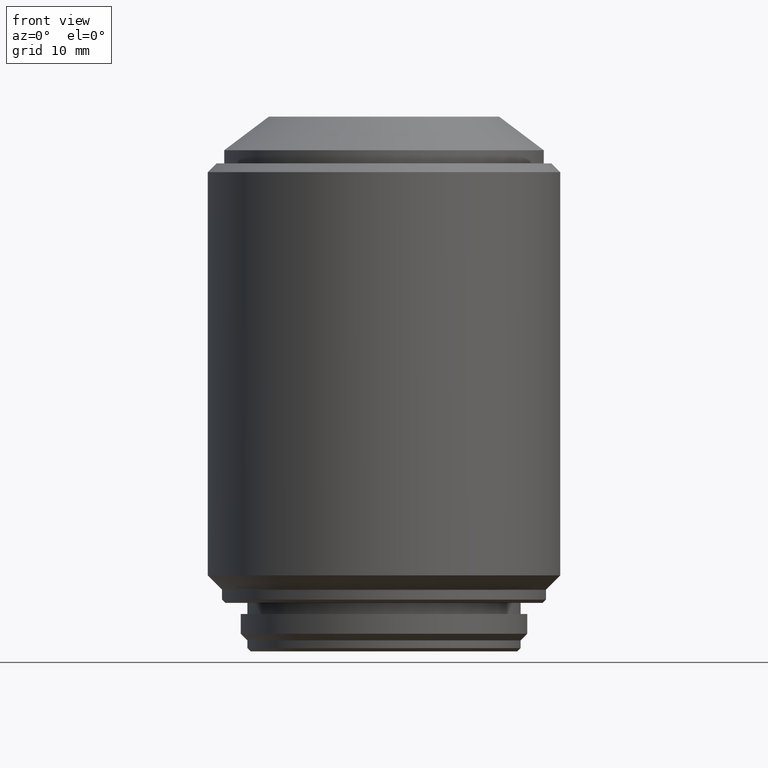
[diagram: clean part render]
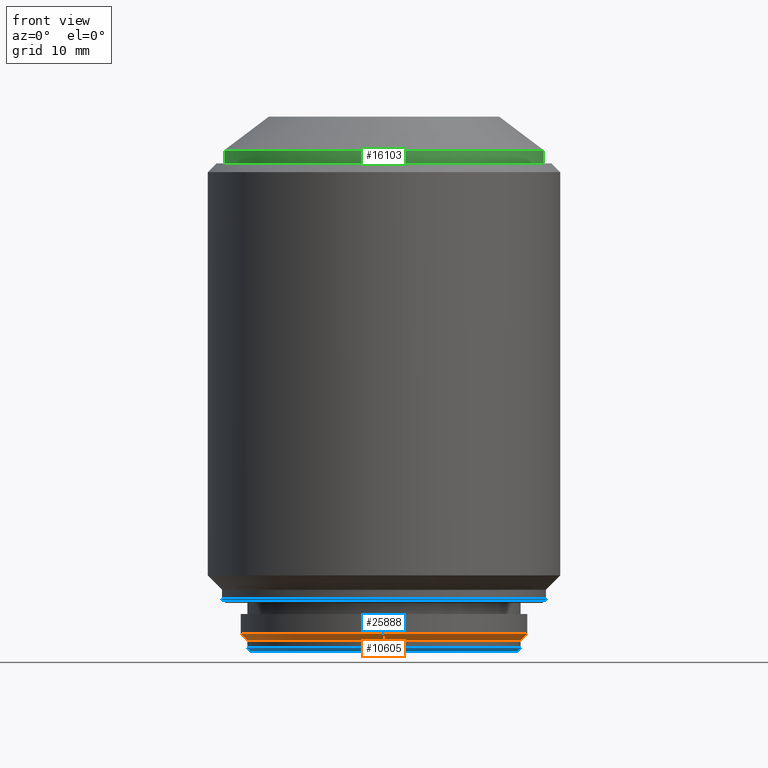
[diagram: same view with three faces highlighted in distinct colors, each labeled with its STEP entity id]
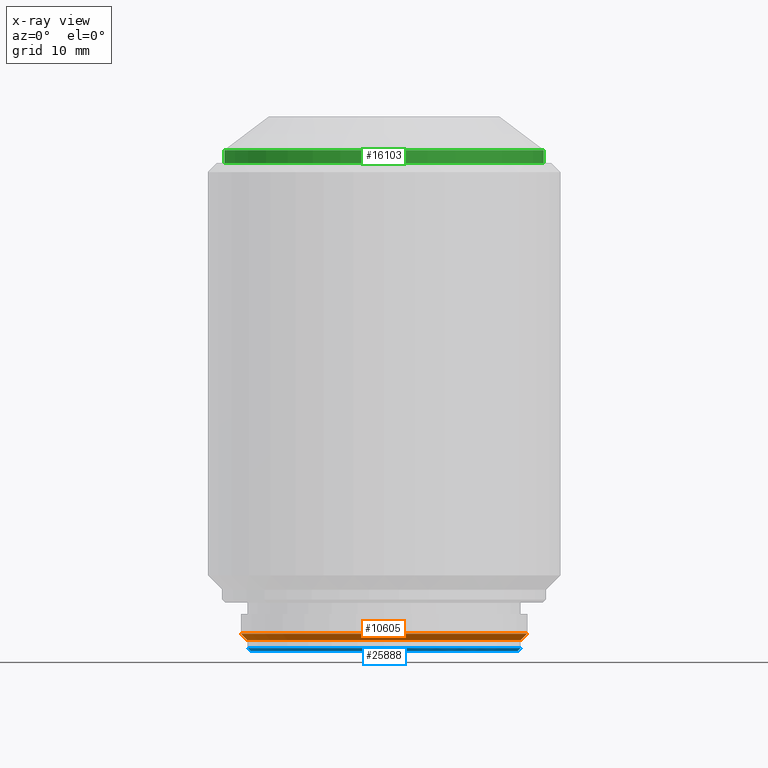
[diagram: x-ray of the same camera — body ghosted, the three highlighted faces saturated]
A machine part, front view with three faces highlighted in distinct colors.
The next image is the same camera in x-ray (body ghosted, the three faces saturated) — at least one of them is partly hidden behind the body in this view.
Their STEP definitions:

[orange] entity #10605 — the highlighted conical surface has half-angle 45 deg.
#541 = EDGE_CURVE ( 'NONE', #21153, #5193, #23261, .T. ) ;
#582 = CARTESIAN_POINT ( 'NONE',  ( 0.000000000000000000, 0.000000000000000000, 1.600000000000000089 ) ) ;
#862 = DIRECTION ( 'NONE',  ( 0.000000000000000000, 0.000000000000000000, 1.000000000000000000 ) ) ;
#876 = LINE ( 'NONE', #5048, #15697 ) ;
#1664 = CIRCLE ( 'NONE', #5782, 12.40000000000000036 ) ;
#3504 = ORIENTED_EDGE ( 'NONE', *, *, #9782, .F. ) ;
#4598 = ORIENTED_EDGE ( 'NONE', *, *, #7760, .T. ) ;
#4682 = DIRECTION ( 'NONE',  ( 0.000000000000000000, 0.000000000000000000, 1.000000000000000000 ) ) ;
#5048 = CARTESIAN_POINT ( 'NONE',  ( -13.00000000000000000, 1.592040838891559095E-15, 1.600000000000000089 ) ) ;
#5193 = VERTEX_POINT ( 'NONE', #14702 ) ;
#5450 = DIRECTION ( 'NONE',  ( 0.000000000000000000, 0.000000000000000000, -1.000000000000000000 ) ) ;
#5729 = CONICAL_SURFACE ( 'NONE', #9835, 13.00000000000000000, 0.7853981633974539411 ) ;
#5782 = AXIS2_PLACEMENT_3D ( 'NONE', #19996, #5450, #22961 ) ;
#6828 = FACE_OUTER_BOUND ( 'NONE', #19844, .T. ) ;
#7760 = EDGE_CURVE ( 'NONE', #20762, #5193, #26388, .T. ) ;
#8159 = ORIENTED_EDGE ( 'NONE', *, *, #541, .F. ) ;
#9782 = EDGE_CURVE ( 'NONE', #26972, #21153, #876, .T. ) ;
#9835 = AXIS2_PLACEMENT_3D ( 'NONE', #17872, #4682, #19888 ) ;
#10596 = CARTESIAN_POINT ( 'NONE',  ( 13.00000000000000000, 0.000000000000000000, 1.600000000000000089 ) ) ;
#10605 = ADVANCED_FACE ( 'NONE', ( #6828 ), #5729, .T. ) ;
#13163 = AXIS2_PLACEMENT_3D ( 'NONE', #582, #862, #22679 ) ;
#14702 = CARTESIAN_POINT ( 'NONE',  ( 13.00000000000000000, 0.000000000000000000, 1.600000000000000089 ) ) ;
#15697 = VECTOR ( 'NONE', #20397, 1000.000000000000000 ) ;
#17872 = CARTESIAN_POINT ( 'NONE',  ( 0.000000000000000000, 0.000000000000000000, 1.600000000000000089 ) ) ;
#19221 = DIRECTION ( 'NONE',  ( 0.7071067811865515695, 0.000000000000000000, 0.7071067811865435759 ) ) ;
#19844 = EDGE_LOOP ( 'NONE', ( #3504, #23197, #4598, #8159 ) ) ;
#19888 = DIRECTION ( 'NONE',  ( 1.000000000000000000, 0.000000000000000000, 0.000000000000000000 ) ) ;
#19996 = CARTESIAN_POINT ( 'NONE',  ( 0.000000000000000000, 0.000000000000000000, 1.000000000000000000 ) ) ;
#20397 = DIRECTION ( 'NONE',  ( -0.7071067811865515695, 8.659560562354982162E-17, 0.7071067811865435759 ) ) ;
#20762 = VERTEX_POINT ( 'NONE', #22275 ) ;
#21153 = VERTEX_POINT ( 'NONE', #25569 ) ;
#22275 = CARTESIAN_POINT ( 'NONE',  ( 12.40000000000000036, 0.000000000000000000, 1.000000000000000000 ) ) ;
#22679 = DIRECTION ( 'NONE',  ( -1.000000000000000000, 0.000000000000000000, 0.000000000000000000 ) ) ;
#22961 = DIRECTION ( 'NONE',  ( -1.000000000000000000, 0.000000000000000000, 0.000000000000000000 ) ) ;
#23197 = ORIENTED_EDGE ( 'NONE', *, *, #23558, .F. ) ;
#23261 = CIRCLE ( 'NONE', #13163, 13.00000000000000000 ) ;
#23558 = EDGE_CURVE ( 'NONE', #20762, #26972, #1664, .T. ) ;
#25569 = CARTESIAN_POINT ( 'NONE',  ( -13.00000000000000000, 1.592040838891559095E-15, 1.600000000000000089 ) ) ;
#26388 = LINE ( 'NONE', #10596, #26446 ) ;
#26446 = VECTOR ( 'NONE', #19221, 1000.000000000000000 ) ;
#26972 = VERTEX_POINT ( 'NONE', #27884 ) ;
#27884 = CARTESIAN_POINT ( 'NONE',  ( -12.40000000000000036, 1.555301434917138433E-15, 1.000000000000000000 ) ) ;

[blue] entity #25888 — the highlighted conical surface has half-angle 45 deg.
#639 = CARTESIAN_POINT ( 'NONE',  ( 0.000000000000000000, 0.000000000000000000, 0.2999999999999999889 ) ) ;
#1367 = DIRECTION ( 'NONE',  ( 1.000000000000000000, 0.000000000000000000, 0.000000000000000000 ) ) ;
#3313 = CIRCLE ( 'NONE', #19794, 12.40000000000000036 ) ;
#3389 = VERTEX_POINT ( 'NONE', #6957 ) ;
#3638 = CIRCLE ( 'NONE', #10954, 12.09999999999999964 ) ;
#4066 = EDGE_CURVE ( 'NONE', #3389, #21956, #28157, .T. ) ;
#4172 = ORIENTED_EDGE ( 'NONE', *, *, #5891, .F. ) ;
#4360 = FACE_OUTER_BOUND ( 'NONE', #13091, .T. ) ;
#5526 = DIRECTION ( 'NONE',  ( 0.000000000000000000, 0.000000000000000000, -1.000000000000000000 ) ) ;
#5891 = EDGE_CURVE ( 'NONE', #21956, #7032, #3313, .T. ) ;
#6194 = CARTESIAN_POINT ( 'NONE',  ( -12.09999999999999964, 1.481822626968297304E-15, 0.000000000000000000 ) ) ;
#6471 = DIRECTION ( 'NONE',  ( -0.7071067811865431318, 8.659560562354878624E-17, 0.7071067811865520136 ) ) ;
#6957 = CARTESIAN_POINT ( 'NONE',  ( -12.09999999999999964, 1.500192328955507537E-15, 0.000000000000000000 ) ) ;
#7032 = VERTEX_POINT ( 'NONE', #12992 ) ;
#7824 = ORIENTED_EDGE ( 'NONE', *, *, #19260, .F. ) ;
#7870 = EDGE_CURVE ( 'NONE', #27670, #7032, #9928, .T. ) ;
#8933 = CARTESIAN_POINT ( 'NONE',  ( -12.39999999999999680, 1.518562030942717573E-15, 0.2999999999999999889 ) ) ;
#9806 = DIRECTION ( 'NONE',  ( 0.000000000000000000, 0.000000000000000000, 1.000000000000000000 ) ) ;
#9928 = LINE ( 'NONE', #23432, #10398 ) ;
#10398 = VECTOR ( 'NONE', #21412, 999.9999999999998863 ) ;
#10954 = AXIS2_PLACEMENT_3D ( 'NONE', #23189, #5526, #1367 ) ;
#11760 = AXIS2_PLACEMENT_3D ( 'NONE', #17266, #12685, #25900 ) ;
#12314 = CARTESIAN_POINT ( 'NONE',  ( 12.09999999999999964, 0.000000000000000000, 0.000000000000000000 ) ) ;
#12685 = DIRECTION ( 'NONE',  ( 0.000000000000000000, 0.000000000000000000, 1.000000000000000000 ) ) ;
#12992 = CARTESIAN_POINT ( 'NONE',  ( 12.39999999999999680, 0.000000000000000000, 0.2999999999999999889 ) ) ;
#13091 = EDGE_LOOP ( 'NONE', ( #27134, #7824, #19646, #4172 ) ) ;
#13692 = DIRECTION ( 'NONE',  ( 1.000000000000000000, 0.000000000000000000, 0.000000000000000000 ) ) ;
#17266 = CARTESIAN_POINT ( 'NONE',  ( 0.000000000000000000, 0.000000000000000000, 0.000000000000000000 ) ) ;
#19260 = EDGE_CURVE ( 'NONE', #27670, #3389, #3638, .T. ) ;
#19646 = ORIENTED_EDGE ( 'NONE', *, *, #7870, .T. ) ;
#19794 = AXIS2_PLACEMENT_3D ( 'NONE', #639, #9806, #13692 ) ;
#21412 = DIRECTION ( 'NONE',  ( 0.7071067811865431318, 0.000000000000000000, 0.7071067811865520136 ) ) ;
#21692 = VECTOR ( 'NONE', #6471, 999.9999999999998863 ) ;
#21839 = CONICAL_SURFACE ( 'NONE', #11760, 12.09999999999999964, 0.7853981633974419507 ) ;
#21956 = VERTEX_POINT ( 'NONE', #8933 ) ;
#23189 = CARTESIAN_POINT ( 'NONE',  ( 0.000000000000000000, 0.000000000000000000, 0.000000000000000000 ) ) ;
#23432 = CARTESIAN_POINT ( 'NONE',  ( 12.09999999999999964, 0.000000000000000000, 0.000000000000000000 ) ) ;
#25888 = ADVANCED_FACE ( 'NONE', ( #4360 ), #21839, .T. ) ;
#25900 = DIRECTION ( 'NONE',  ( 1.000000000000000000, 0.000000000000000000, 0.000000000000000000 ) ) ;
#27134 = ORIENTED_EDGE ( 'NONE', *, *, #4066, .F. ) ;
#27670 = VERTEX_POINT ( 'NONE', #12314 ) ;
#28157 = LINE ( 'NONE', #6194, #21692 ) ;

[green] entity #16103 — the highlighted cylindrical surface (partial cylindrical patch) has radius 14.5 mm, axis along (0, 0, 1).
#296 = VERTEX_POINT ( 'NONE', #14723 ) ;
#494 = EDGE_CURVE ( 'NONE', #23026, #23595, #26427, .T. ) ;
#720 = FACE_OUTER_BOUND ( 'NONE', #6218, .T. ) ;
#1081 = EDGE_CURVE ( 'NONE', #23595, #11691, #27379, .T. ) ;
#1215 = DIRECTION ( 'NONE',  ( 0.000000000000000000, 0.000000000000000000, 1.000000000000000000 ) ) ;
#1990 = CARTESIAN_POINT ( 'NONE',  ( 14.50000000000000000, 0.000000000000000000, 44.29999999999999716 ) ) ;
#3019 = CARTESIAN_POINT ( 'NONE',  ( 0.000000000000000000, 0.000000000000000000, 44.29999999999999716 ) ) ;
#3384 = ORIENTED_EDGE ( 'NONE', *, *, #4951, .T. ) ;
#4051 = CARTESIAN_POINT ( 'NONE',  ( 14.50000000000000000, 0.000000000000000000, 44.29999999999999716 ) ) ;
#4951 = EDGE_CURVE ( 'NONE', #296, #23026, #13877, .T. ) ;
#6218 = EDGE_LOOP ( 'NONE', ( #16039, #3384, #18998, #25714 ) ) ;
#6795 = AXIS2_PLACEMENT_3D ( 'NONE', #3019, #14047, #22254 ) ;
#7644 = CARTESIAN_POINT ( 'NONE',  ( -14.50000000000001243, 0.000000000000000000, 45.49300000000000210 ) ) ;
#9122 = LINE ( 'NONE', #17871, #15040 ) ;
#10182 = DIRECTION ( 'NONE',  ( 0.000000000000000000, 0.000000000000000000, 1.000000000000000000 ) ) ;
#11691 = VERTEX_POINT ( 'NONE', #7644 ) ;
#12050 = CARTESIAN_POINT ( 'NONE',  ( 14.50000000000001243, 1.775737858763663593E-15, 45.49300000000000210 ) ) ;
#13877 = CIRCLE ( 'NONE', #18932, 14.50000000000000000 ) ;
#14047 = DIRECTION ( 'NONE',  ( 0.000000000000000000, 0.000000000000000000, 1.000000000000000000 ) ) ;
#14723 = CARTESIAN_POINT ( 'NONE',  ( -14.50000000000000000, 1.775737858763662015E-15, 44.29999999999999716 ) ) ;
#14936 = DIRECTION ( 'NONE',  ( 0.000000000000000000, 0.000000000000000000, 1.000000000000000000 ) ) ;
#15040 = VECTOR ( 'NONE', #1215, 1000.000000000000000 ) ;
#16039 = ORIENTED_EDGE ( 'NONE', *, *, #16570, .F. ) ;
#16103 = ADVANCED_FACE ( 'NONE', ( #720 ), #26706, .T. ) ;
#16346 = CARTESIAN_POINT ( 'NONE',  ( 0.000000000000000000, 0.000000000000000000, 45.49300000000000210 ) ) ;
#16570 = EDGE_CURVE ( 'NONE', #296, #11691, #9122, .T. ) ;
#16933 = DIRECTION ( 'NONE',  ( 1.000000000000000000, 0.000000000000000000, 0.000000000000000000 ) ) ;
#17871 = CARTESIAN_POINT ( 'NONE',  ( -14.50000000000000000, 1.775737858763662015E-15, 44.29999999999999716 ) ) ;
#18932 = AXIS2_PLACEMENT_3D ( 'NONE', #21385, #10182, #16933 ) ;
#18998 = ORIENTED_EDGE ( 'NONE', *, *, #494, .T. ) ;
#21228 = DIRECTION ( 'NONE',  ( 1.000000000000000000, 0.000000000000000000, 0.000000000000000000 ) ) ;
#21385 = CARTESIAN_POINT ( 'NONE',  ( 0.000000000000000000, 0.000000000000000000, 44.29999999999999716 ) ) ;
#22254 = DIRECTION ( 'NONE',  ( 1.000000000000000000, 0.000000000000000000, 0.000000000000000000 ) ) ;
#23026 = VERTEX_POINT ( 'NONE', #1990 ) ;
#23390 = DIRECTION ( 'NONE',  ( 0.000000000000000000, 0.000000000000000000, -1.000000000000000000 ) ) ;
#23595 = VERTEX_POINT ( 'NONE', #12050 ) ;
#23731 = VECTOR ( 'NONE', #14936, 1000.000000000000000 ) ;
#24179 = AXIS2_PLACEMENT_3D ( 'NONE', #16346, #23390, #21228 ) ;
#25714 = ORIENTED_EDGE ( 'NONE', *, *, #1081, .T. ) ;
#26427 = LINE ( 'NONE', #4051, #23731 ) ;
#26706 = CYLINDRICAL_SURFACE ( 'NONE', #6795, 14.50000000000000000 ) ;
#27379 = CIRCLE ( 'NONE', #24179, 14.50000000000000000 ) ;